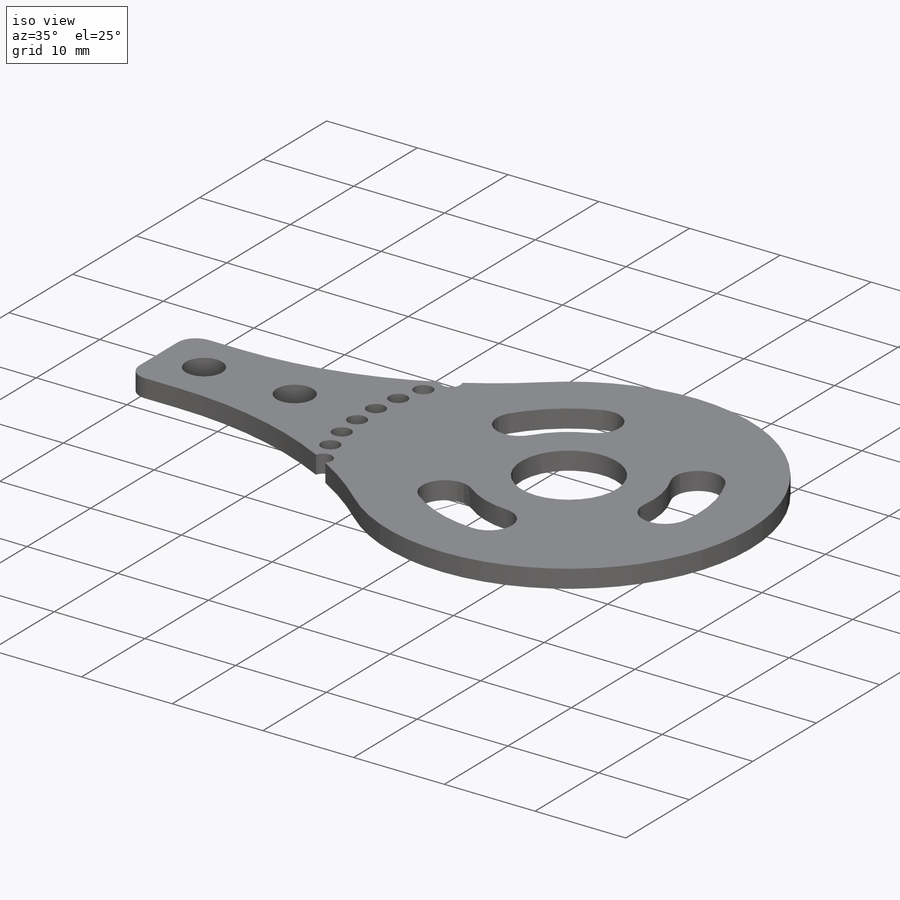
[diagram: iso view]
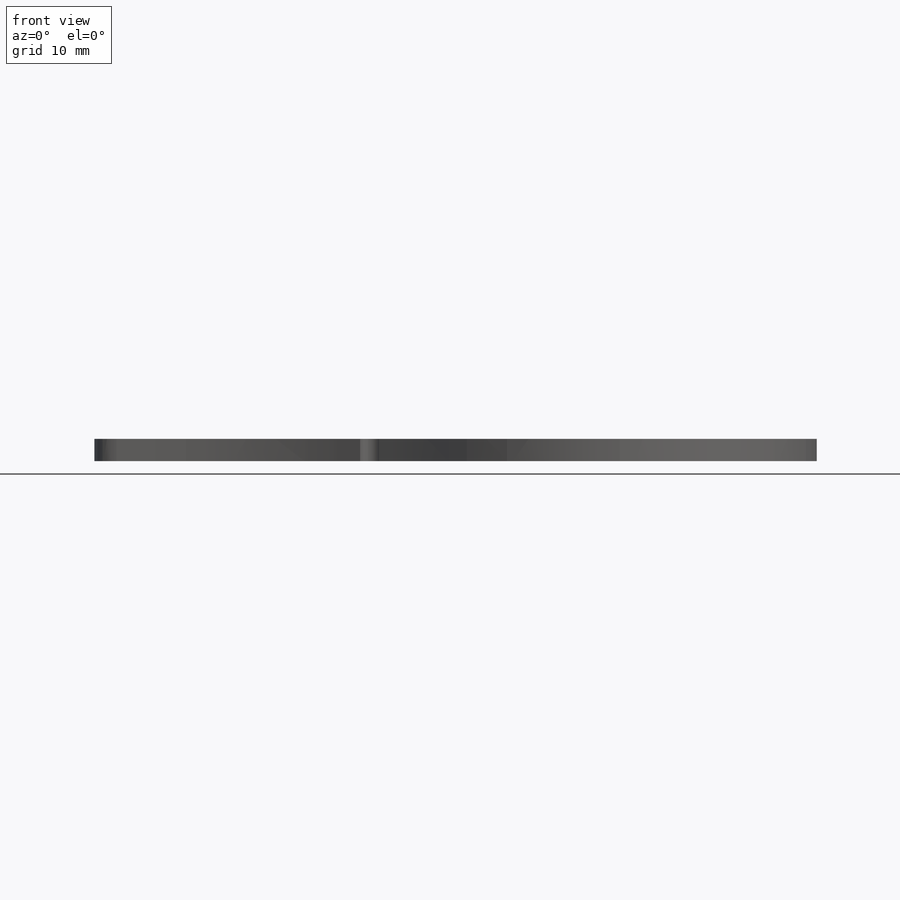
[diagram: front view]
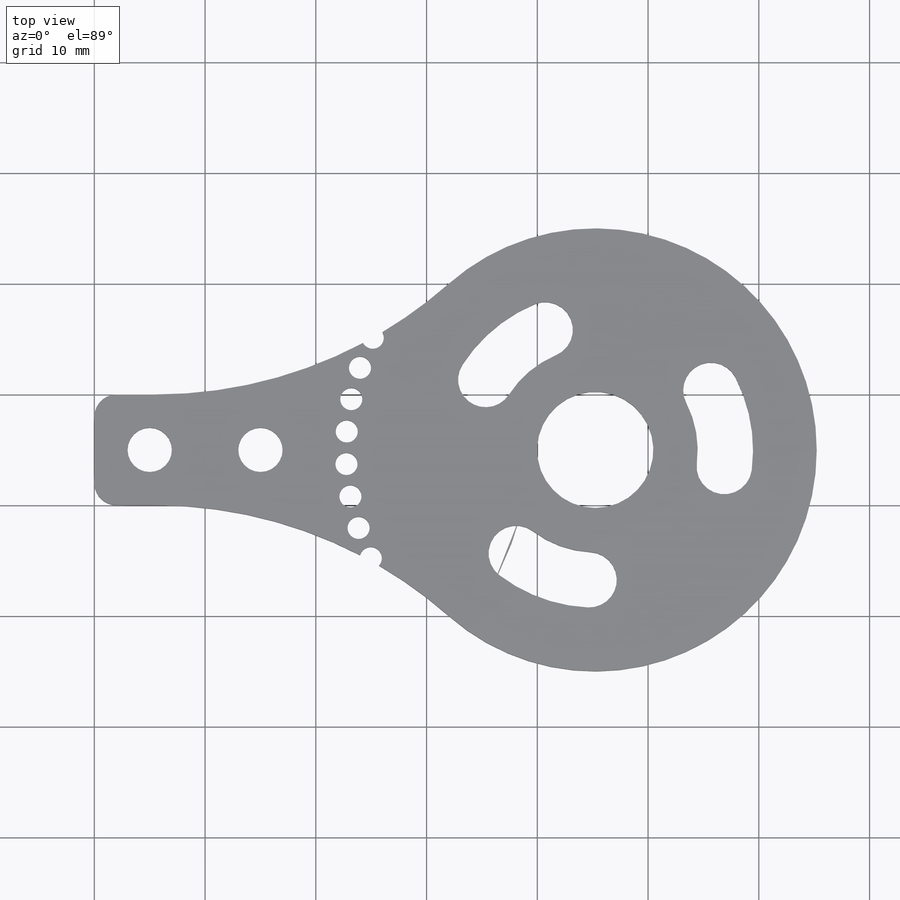
[diagram: top view]
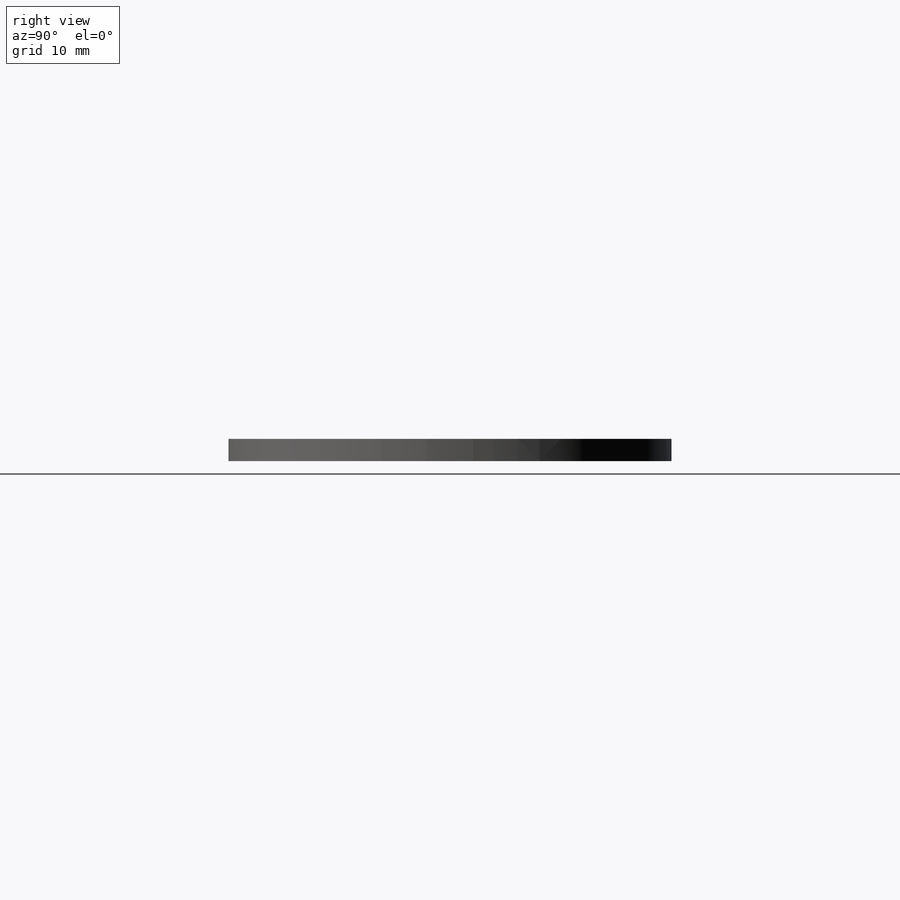
[diagram: right view]
SOLIDWORKS PART (.sldprt)
format: sldprt  version: not decoded by parser v0  size: 391,680 bytes
history: native  units: mm
features: sketch x6, cut_extrude x5, plane x3, pattern_circular x3, material x1, extrude x1, pattern_linear x1 (+9 scaffold rows collapsed)
feature tree (29):
  scaffold x9  (default folders/planes/origin — collapsed)
  material  "Стеклотекстолит"
  plane  "Спереди"
  plane  "Сверху"
  plane  "Справа"
  sketch  "Эскиз1"  dims[D2=40.0mm D3=2.0mm D4=20.0mm D1=10.0mm D5=32.0mm D6=~45.228757mm]
  extrude  "Бобышка-Вытянуть1"  Depth=2mm
  sketch  "Эскиз2"  dims[D1=2.0mm D2=~41.604569mm]
  cut_extrude  "Вырез-Вытянуть1"  [1 undecoded]
  pattern_circular  "Круговой массив1"  Count=8 Angle=7.5deg
  sketch  "Эскиз3"  dims[D1=4.0mm D2=5.0mm]
  cut_extrude  "Вырез-Вытянуть2"  [1 undecoded]
  pattern_linear  "Линейный массив1"  Count1=2 Count2=1 Spacing1=10mm Spacing2=10mm
  sketch  "Эскиз4"  dims[D1=4.0mm D2=23.5mm]
  cut_extrude  "Вырез-Вытянуть3"  [1 undecoded]
  pattern_circular  "Круговой массив2"  Count=8 Angle=45deg
  sketch  "Эскиз6"  dims[c1.D1=5.0mm c1.D2=5.0mm c1.D3=9.75mm c2.D3=45.0deg c2.D4=~11.749883mm c2.D5=7.0mm]
  cut_extrude  "Вырез-Вытянуть4"  [1 undecoded]
  pattern_circular  "Круговой массив3"  Count=3 Angle=120deg
  sketch  "Эскиз7"  dims[D1=10.5mm]
  cut_extrude  "Вырез-Вытянуть5"  [1 undecoded]
decode coverage: 11 of 16 modeling features carry decoded parameters
note: ~ marks probable driven/reference dimensions
note: 5 parameter values undecoded
summary: no parameter record found for 5 features
note: suppression state not decoded; provenance and decode notes live in map.json
